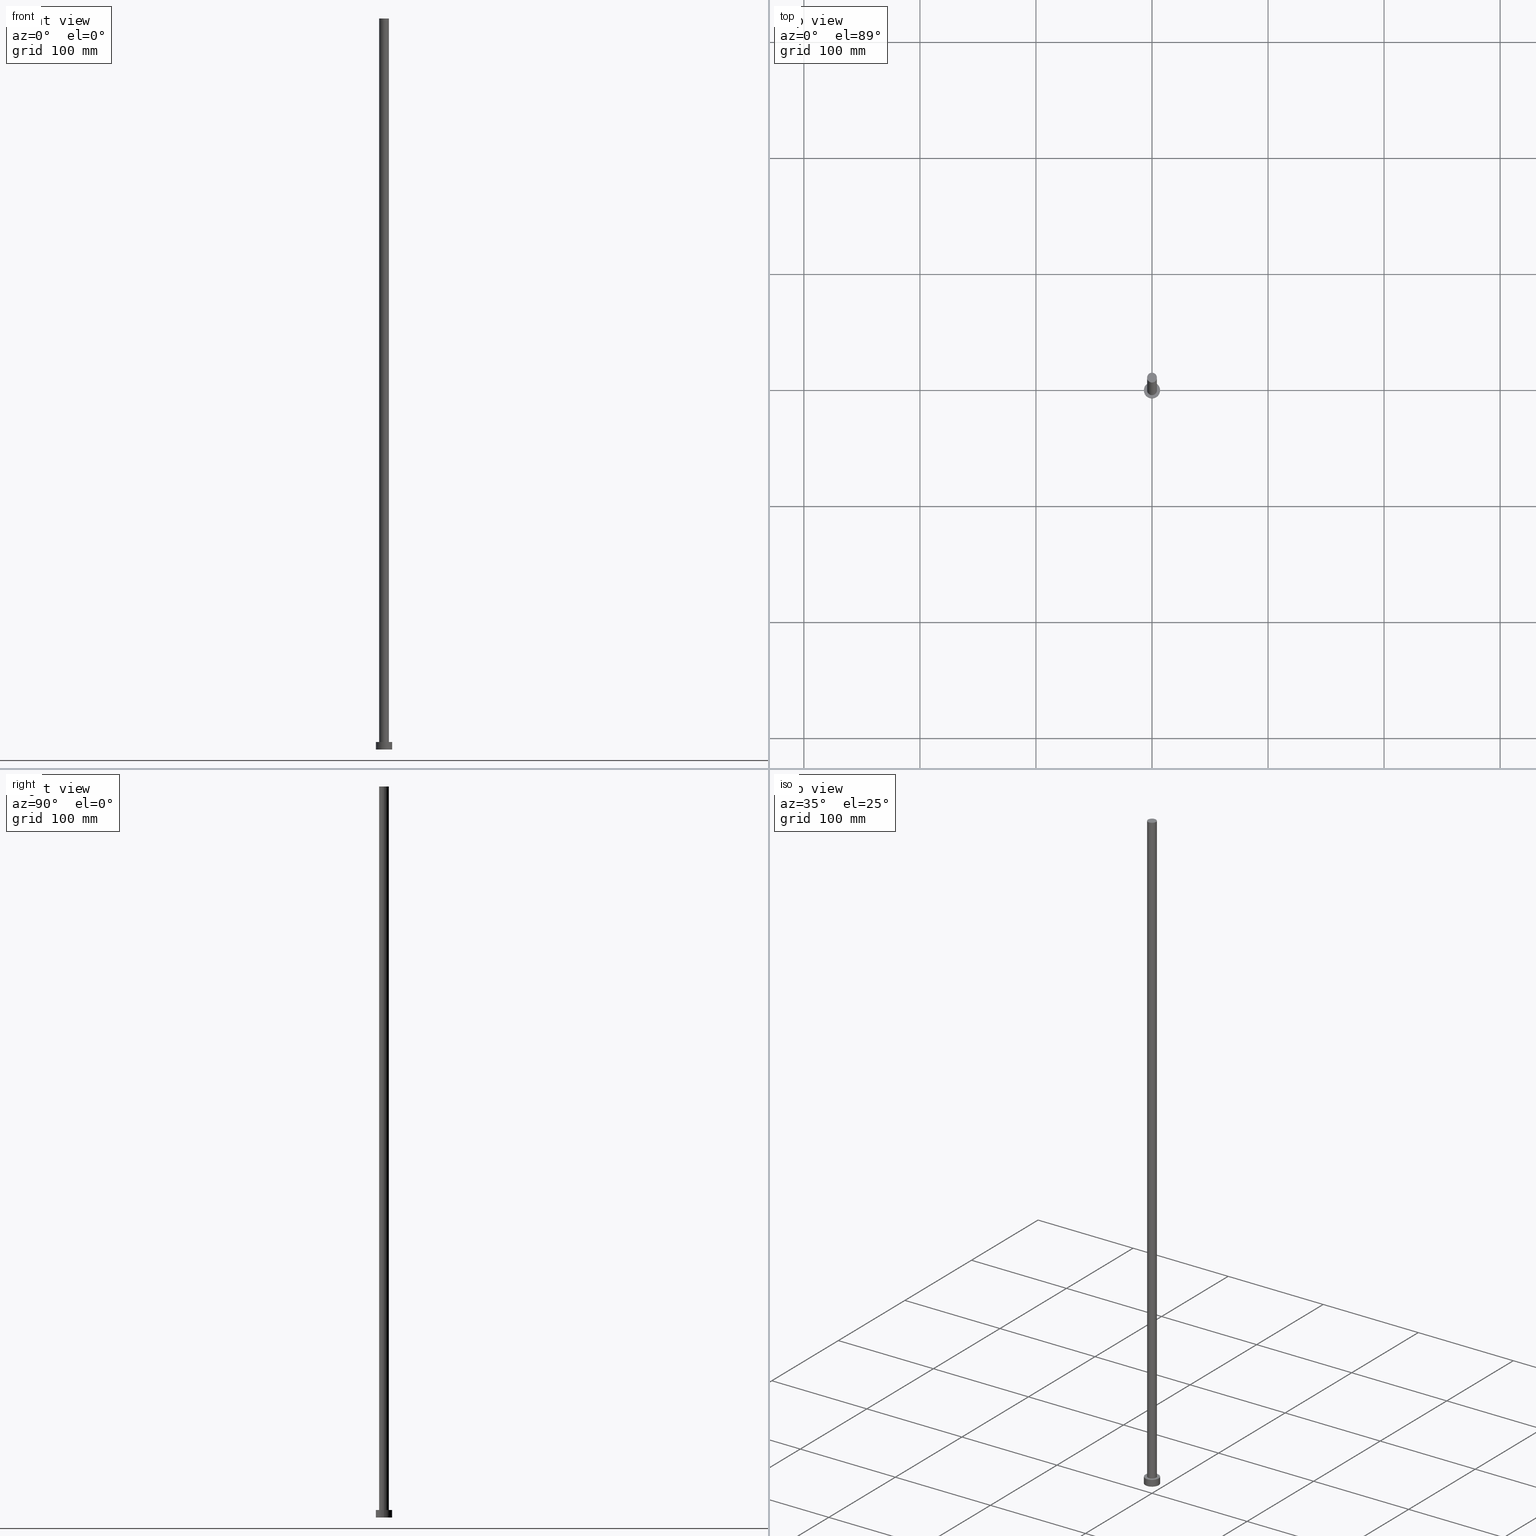
[diagram: canonical four-view strip — front | top / right | iso, engineering-drawing reading convention]
A machine part, canonical four-view strip (front | top / right | iso — engineering-drawing reading convention). The complete STEP part file that produces these views, byte-faithful:
ISO-10303-21;
HEADER;
FILE_DESCRIPTION (( 'STEP AP203' ),
    '1' );
FILE_NAME ('d40b.STEP',
    '2023-02-13T13:47:25',
    ( '' ),
    ( '' ),
    'SwSTEP 2.0',
    'SolidWorks 2019',
    '' );
FILE_SCHEMA (( 'CONFIG_CONTROL_DESIGN' ));
ENDSEC;

DATA;
#1 = CIRCLE ( 'NONE', #246, 7.000000000000000000 ) ;
#2 = COORDINATED_UNIVERSAL_TIME_OFFSET ( 1, 0, .AHEAD. ) ;
#3 = PERSON_AND_ORGANIZATION ( #157, #99 ) ;
#4 = DIRECTION ( 'NONE',  ( 0.000000000000000000, 0.000000000000000000, 1.000000000000000000 ) ) ;
#5 = APPROVAL_DATE_TIME ( #160, #113 ) ;
#6 = CARTESIAN_POINT ( 'NONE',  ( 7.000000000000000000, 8.572527594031471218E-16, 6.500000000000000000 ) ) ;
#7 = APPLICATION_PROTOCOL_DEFINITION ( 'international standard', 'config_control_design', 1994, #126 ) ;
#8 = EDGE_LOOP ( 'NONE', ( #168, #199, #206, #209 ) ) ;
#9 = DIRECTION ( 'NONE',  ( 0.000000000000000000, 0.000000000000000000, 1.000000000000000000 ) ) ;
#10 = ORIENTED_EDGE ( 'NONE', *, *, #213, .T. ) ;
#11 = AXIS2_PLACEMENT_3D ( 'NONE', #95, #79, #233 ) ;
#12 = DIRECTION ( 'NONE',  ( 1.000000000000000000, 0.000000000000000000, -0.000000000000000000 ) ) ;
#13 = DIRECTION ( 'NONE',  ( 0.000000000000000000, 0.000000000000000000, 1.000000000000000000 ) ) ;
#14 = CARTESIAN_POINT ( 'NONE',  ( 4.250000000000000000, 5.204748896376249713E-16, 630.0000000000000000 ) ) ;
#15 = DIRECTION ( 'NONE',  ( 1.000000000000000000, 0.000000000000000000, 0.000000000000000000 ) ) ;
#16 = VERTEX_POINT ( 'NONE', #183 ) ;
#17 = SHAPE_DEFINITION_REPRESENTATION ( #140, #215 ) ;
#18 = CC_DESIGN_APPROVAL ( #52, ( #234 ) ) ;
#19 = CIRCLE ( 'NONE', #167, 4.250000000000000000 ) ;
#20 = LOCAL_TIME ( 14, 47, 25.00000000000000000, #139 ) ;
#21 = ORIENTED_EDGE ( 'NONE', *, *, #229, .F. ) ;
#22 = DATE_AND_TIME ( #219, #218 ) ;
#23 = DIRECTION ( 'NONE',  ( -0.000000000000000000, -0.000000000000000000, -1.000000000000000000 ) ) ;
#24 = EDGE_CURVE ( 'NONE', #241, #247, #63, .T. ) ;
#25 = DIRECTION ( 'NONE',  ( -1.000000000000000000, 0.000000000000000000, 0.000000000000000000 ) ) ;
#26 = APPROVAL ( #75, 'NEUR�EN�' ) ;
#27 = CARTESIAN_POINT ( 'NONE',  ( 0.000000000000000000, 0.000000000000000000, 6.500000000000000000 ) ) ;
#28 = DIRECTION ( 'NONE',  ( -1.000000000000000000, 0.000000000000000000, 0.000000000000000000 ) ) ;
#29 = DIRECTION ( 'NONE',  ( -0.000000000000000000, -0.000000000000000000, -1.000000000000000000 ) ) ;
#30 = AXIS2_PLACEMENT_3D ( 'NONE', #136, #135, #12 ) ;
#31 = CARTESIAN_POINT ( 'NONE',  ( -4.250000000000000000, 0.000000000000000000, 630.0000000000000000 ) ) ;
#32 =( LENGTH_UNIT ( ) NAMED_UNIT ( * ) SI_UNIT ( .MILLI., .METRE. ) );
#33 = DIRECTION ( 'NONE',  ( 1.000000000000000000, 0.000000000000000000, -0.000000000000000000 ) ) ;
#34 = CARTESIAN_POINT ( 'NONE',  ( 0.000000000000000000, 0.000000000000000000, 630.0000000000000000 ) ) ;
#35 = CALENDAR_DATE ( 2023, 13, 2 ) ;
#36 = CALENDAR_DATE ( 2023, 13, 2 ) ;
#37 = PERSON_AND_ORGANIZATION ( #157, #99 ) ;
#38 = CYLINDRICAL_SURFACE ( 'NONE', #119, 4.250000000000000000 ) ;
#39 = EDGE_CURVE ( 'NONE', #247, #186, #104, .T. ) ;
#40 = APPROVAL_ROLE ( '' ) ;
#41 = ORIENTED_EDGE ( 'NONE', *, *, #196, .F. ) ;
#42 = DIRECTION ( 'NONE',  ( -0.000000000000000000, -0.000000000000000000, -1.000000000000000000 ) ) ;
#43 = AXIS2_PLACEMENT_3D ( 'NONE', #191, #137, #15 ) ;
#44 = CIRCLE ( 'NONE', #200, 4.250000000000000000 ) ;
#45 = DIRECTION ( 'NONE',  ( -0.000000000000000000, -0.000000000000000000, -1.000000000000000000 ) ) ;
#46 = CARTESIAN_POINT ( 'NONE',  ( 0.000000000000000000, 0.000000000000000000, 630.0000000000000000 ) ) ;
#47 = DIRECTION ( 'NONE',  ( 0.000000000000000000, 0.000000000000000000, 1.000000000000000000 ) ) ;
#48 = DIRECTION ( 'NONE',  ( 0.000000000000000000, 0.000000000000000000, 1.000000000000000000 ) ) ;
#49 = EDGE_CURVE ( 'NONE', #241, #16, #82, .T. ) ;
#50 = ORIENTED_EDGE ( 'NONE', *, *, #93, .F. ) ;
#51 = UNCERTAINTY_MEASURE_WITH_UNIT (LENGTH_MEASURE( 1.000000000000000082E-05 ), #32, 'distance_accuracy_value', 'NONE');
#52 = APPROVAL ( #60, 'NEUR�EN�' ) ;
#53 = CARTESIAN_POINT ( 'NONE',  ( 7.000000000000000000, 8.572527594031471218E-16, 0.000000000000000000 ) ) ;
#54 = DIRECTION ( 'NONE',  ( 0.000000000000000000, 0.000000000000000000, 1.000000000000000000 ) ) ;
#55 = PERSON_AND_ORGANIZATION_ROLE ( 'creator' ) ;
#56 = PRODUCT_DEFINITION ( 'NEZN�M�', '', #244, #174 ) ;
#57 = DATE_TIME_ROLE ( 'classification_date' ) ;
#58 = CC_DESIGN_APPROVAL ( #113, ( #244 ) ) ;
#59 = VECTOR ( 'NONE', #127, 1000.000000000000000 ) ;
#60 = APPROVAL_STATUS ( 'not_yet_approved' ) ;
#61 = ORIENTED_EDGE ( 'NONE', *, *, #107, .T. ) ;
#62 = ADVANCED_FACE ( 'NONE', ( #66 ), #70, .T. ) ;
#63 = CIRCLE ( 'NONE', #155, 7.000000000000000000 ) ;
#64 = CC_DESIGN_PERSON_AND_ORGANIZATION_ASSIGNMENT ( #203, #78, ( #244 ) ) ;
#65 = PERSON_AND_ORGANIZATION ( #157, #99 ) ;
#66 = FACE_OUTER_BOUND ( 'NONE', #129, .T. ) ;
#67 = CYLINDRICAL_SURFACE ( 'NONE', #245, 7.000000000000000000 ) ;
#68 = DIRECTION ( 'NONE',  ( 0.000000000000000000, 0.000000000000000000, 1.000000000000000000 ) ) ;
#69 = LOCAL_TIME ( 14, 47, 25.00000000000000000, #197 ) ;
#70 = CYLINDRICAL_SURFACE ( 'NONE', #100, 7.000000000000000000 ) ;
#71 = DIRECTION ( 'NONE',  ( -0.000000000000000000, -0.000000000000000000, -1.000000000000000000 ) ) ;
#72 = FACE_BOUND ( 'NONE', #170, .T. ) ;
#73 = FACE_OUTER_BOUND ( 'NONE', #210, .T. ) ;
#74 = VECTOR ( 'NONE', #84, 1000.000000000000000 ) ;
#75 = APPROVAL_STATUS ( 'not_yet_approved' ) ;
#76 = ADVANCED_FACE ( 'NONE', ( #152 ), #67, .T. ) ;
#77 = ORIENTED_EDGE ( 'NONE', *, *, #190, .F. ) ;
#78 = PERSON_AND_ORGANIZATION_ROLE ( 'creator' ) ;
#79 = DIRECTION ( 'NONE',  ( 0.000000000000000000, 0.000000000000000000, 1.000000000000000000 ) ) ;
#80 = FACE_OUTER_BOUND ( 'NONE', #189, .T. ) ;
#81 = PERSON_AND_ORGANIZATION ( #157, #99 ) ;
#82 = LINE ( 'NONE', #85, #59 ) ;
#83 = APPROVAL_ROLE ( '' ) ;
#84 = DIRECTION ( 'NONE',  ( -0.000000000000000000, -0.000000000000000000, -1.000000000000000000 ) ) ;
#85 = CARTESIAN_POINT ( 'NONE',  ( -7.000000000000000000, 0.000000000000000000, 6.500000000000000000 ) ) ;
#86 = ORIENTED_EDGE ( 'NONE', *, *, #24, .T. ) ;
#87 = VECTOR ( 'NONE', #71, 1000.000000000000000 ) ;
#88 = CARTESIAN_POINT ( 'NONE',  ( 0.000000000000000000, 0.000000000000000000, 0.000000000000000000 ) ) ;
#89 = CC_DESIGN_DATE_AND_TIME_ASSIGNMENT ( #166, #57, ( #234 ) ) ;
#90 = DIRECTION ( 'NONE',  ( 0.000000000000000000, 0.000000000000000000, 1.000000000000000000 ) ) ;
#91 = CLOSED_SHELL ( 'NONE', ( #161, #62, #76, #169, #202, #112, #141 ) ) ;
#92 = DIRECTION ( 'NONE',  ( 1.000000000000000000, 0.000000000000000000, -0.000000000000000000 ) ) ;
#93 = EDGE_CURVE ( 'NONE', #223, #149, #44, .T. ) ;
#94 = LINE ( 'NONE', #156, #225 ) ;
#95 = CARTESIAN_POINT ( 'NONE',  ( 0.000000000000000000, 0.000000000000000000, 0.000000000000000000 ) ) ;
#96 = LOCAL_TIME ( 14, 47, 25.00000000000000000, #2 ) ;
#97 = MECHANICAL_CONTEXT ( 'NONE', #111, 'mechanical' ) ;
#98 = VERTEX_POINT ( 'NONE', #222 ) ;
#99 = ORGANIZATION ( 'NEUR�EN�', 'NEUR�EN�', '' ) ;
#100 = AXIS2_PLACEMENT_3D ( 'NONE', #145, #45, #243 ) ;
#101 = AXIS2_PLACEMENT_3D ( 'NONE', #46, #13, #134 ) ;
#102 = APPROVAL_STATUS ( 'not_yet_approved' ) ;
#103 = ORIENTED_EDGE ( 'NONE', *, *, #93, .T. ) ;
#104 = LINE ( 'NONE', #6, #74 ) ;
#105 = LINE ( 'NONE', #31, #87 ) ;
#106 = EDGE_LOOP ( 'NONE', ( #227, #228, #131, #238 ) ) ;
#107 = EDGE_CURVE ( 'NONE', #247, #241, #226, .T. ) ;
#108 = ORIENTED_EDGE ( 'NONE', *, *, #229, .T. ) ;
#109 = ORIENTED_EDGE ( 'NONE', *, *, #130, .T. ) ;
#110 = DIRECTION ( 'NONE',  ( 0.000000000000000000, 0.000000000000000000, 1.000000000000000000 ) ) ;
#111 = APPLICATION_CONTEXT ( 'configuration controlled 3d designs of mechanical parts and assemblies' ) ;
#112 = ADVANCED_FACE ( 'NONE', ( #80 ), #38, .T. ) ;
#113 = APPROVAL ( #102, 'NEUR�EN�' ) ;
#114 = CARTESIAN_POINT ( 'NONE',  ( 0.000000000000000000, 0.000000000000000000, 6.500000000000000000 ) ) ;
#115 = DIRECTION ( 'NONE',  ( 1.000000000000000000, 0.000000000000000000, 0.000000000000000000 ) ) ;
#116 =( NAMED_UNIT ( * ) PLANE_ANGLE_UNIT ( ) SI_UNIT ( $, .RADIAN. ) );
#117 = CC_DESIGN_APPROVAL ( #26, ( #56 ) ) ;
#118 = AXIS2_PLACEMENT_3D ( 'NONE', #88, #110, #33 ) ;
#119 = AXIS2_PLACEMENT_3D ( 'NONE', #147, #23, #25 ) ;
#120 = PLANE ( 'NONE',  #132 ) ;
#121 = DATE_AND_TIME ( #36, #143 ) ;
#122 = PERSON_AND_ORGANIZATION ( #157, #99 ) ;
#123 =( GEOMETRIC_REPRESENTATION_CONTEXT ( 3 ) GLOBAL_UNCERTAINTY_ASSIGNED_CONTEXT ( ( #51 ) ) GLOBAL_UNIT_ASSIGNED_CONTEXT ( ( #32, #116, #232 ) ) REPRESENTATION_CONTEXT ( 'NONE', 'WORKASPACE' ) );
#124 = EDGE_LOOP ( 'NONE', ( #77, #201 ) ) ;
#125 = DATE_TIME_ROLE ( 'creation_date' ) ;
#126 = APPLICATION_CONTEXT ( 'configuration controlled 3d designs of mechanical parts and assemblies' ) ;
#127 = DIRECTION ( 'NONE',  ( -0.000000000000000000, -0.000000000000000000, -1.000000000000000000 ) ) ;
#128 = CALENDAR_DATE ( 2023, 13, 2 ) ;
#129 = EDGE_LOOP ( 'NONE', ( #192, #165, #10, #172 ) ) ;
#130 = EDGE_CURVE ( 'NONE', #98, #223, #105, .T. ) ;
#131 = ORIENTED_EDGE ( 'NONE', *, *, #49, .T. ) ;
#132 = AXIS2_PLACEMENT_3D ( 'NONE', #194, #48, #92 ) ;
#133 = CARTESIAN_POINT ( 'NONE',  ( 0.000000000000000000, 0.000000000000000000, 6.500000000000000000 ) ) ;
#134 = DIRECTION ( 'NONE',  ( 1.000000000000000000, 0.000000000000000000, 0.000000000000000000 ) ) ;
#135 = DIRECTION ( 'NONE',  ( 0.000000000000000000, 0.000000000000000000, 1.000000000000000000 ) ) ;
#136 = CARTESIAN_POINT ( 'NONE',  ( 0.000000000000000000, 0.000000000000000000, 630.0000000000000000 ) ) ;
#137 = DIRECTION ( 'NONE',  ( 0.000000000000000000, 0.000000000000000000, 1.000000000000000000 ) ) ;
#138 = APPROVAL_PERSON_ORGANIZATION ( #65, #52, #40 ) ;
#139 = COORDINATED_UNIVERSAL_TIME_OFFSET ( 1, 0, .AHEAD. ) ;
#140 = PRODUCT_DEFINITION_SHAPE ( 'NONE', 'NONE',  #56 ) ;
#141 = ADVANCED_FACE ( 'NONE', ( #73 ), #153, .T. ) ;
#142 = CC_DESIGN_PERSON_AND_ORGANIZATION_ASSIGNMENT ( #122, #180, ( #234 ) ) ;
#143 = LOCAL_TIME ( 14, 47, 25.00000000000000000, #240 ) ;
#144 = APPROVAL_DATE_TIME ( #22, #26 ) ;
#145 = CARTESIAN_POINT ( 'NONE',  ( 0.000000000000000000, 0.000000000000000000, 6.500000000000000000 ) ) ;
#146 = COORDINATED_UNIVERSAL_TIME_OFFSET ( 1, 0, .AHEAD. ) ;
#147 = CARTESIAN_POINT ( 'NONE',  ( 0.000000000000000000, 0.000000000000000000, 630.0000000000000000 ) ) ;
#148 = EDGE_CURVE ( 'NONE', #149, #223, #19, .T. ) ;
#149 = VERTEX_POINT ( 'NONE', #217 ) ;
#150 = DIRECTION ( 'NONE',  ( 1.000000000000000000, 0.000000000000000000, 0.000000000000000000 ) ) ;
#151 = CIRCLE ( 'NONE', #101, 4.250000000000000000 ) ;
#152 = FACE_OUTER_BOUND ( 'NONE', #106, .T. ) ;
#153 = PLANE ( 'NONE',  #30 ) ;
#154 = DIRECTION ( 'NONE',  ( 1.000000000000000000, 0.000000000000000000, 0.000000000000000000 ) ) ;
#155 = AXIS2_PLACEMENT_3D ( 'NONE', #27, #9, #188 ) ;
#156 = CARTESIAN_POINT ( 'NONE',  ( 4.250000000000000000, 5.204748896376249713E-16, 630.0000000000000000 ) ) ;
#157 = PERSON ( 'NEUR�EN�', 'NEUR�EN�', 'NEUR�EN�', ('NEUR�EN�'), ('NEUR�EN�'), ('NEUR�EN�') ) ;
#158 = APPLICATION_PROTOCOL_DEFINITION ( 'international standard', 'config_control_design', 1994, #111 ) ;
#159 = DIRECTION ( 'NONE',  ( 1.000000000000000000, 0.000000000000000000, 0.000000000000000000 ) ) ;
#160 = DATE_AND_TIME ( #35, #96 ) ;
#161 = ADVANCED_FACE ( 'NONE', ( #249 ), #248, .T. ) ;
#162 = APPROVAL_PERSON_ORGANIZATION ( #179, #113, #83 ) ;
#163 = CIRCLE ( 'NONE', #43, 7.000000000000000000 ) ;
#164 = PERSON_AND_ORGANIZATION ( #157, #99 ) ;
#165 = ORIENTED_EDGE ( 'NONE', *, *, #39, .T. ) ;
#166 = DATE_AND_TIME ( #220, #69 ) ;
#167 = AXIS2_PLACEMENT_3D ( 'NONE', #114, #54, #115 ) ;
#168 = ORIENTED_EDGE ( 'NONE', *, *, #236, .F. ) ;
#169 = ADVANCED_FACE ( 'NONE', ( #72, #230 ), #120, .T. ) ;
#170 = EDGE_LOOP ( 'NONE', ( #50, #193 ) ) ;
#171 = VERTEX_POINT ( 'NONE', #14 ) ;
#172 = ORIENTED_EDGE ( 'NONE', *, *, #49, .F. ) ;
#173 = CARTESIAN_POINT ( 'NONE',  ( -7.000000000000000000, 0.000000000000000000, 6.500000000000000000 ) ) ;
#174 = DESIGN_CONTEXT ( 'detailed design', #126, 'design' ) ;
#175 = CARTESIAN_POINT ( 'NONE',  ( 0.000000000000000000, 0.000000000000000000, 630.0000000000000000 ) ) ;
#176 = DIRECTION ( 'NONE',  ( -0.000000000000000000, -0.000000000000000000, -1.000000000000000000 ) ) ;
#177 = APPROVAL_ROLE ( '' ) ;
#178 = CC_DESIGN_PERSON_AND_ORGANIZATION_ASSIGNMENT ( #81, #55, ( #56 ) ) ;
#179 = PERSON_AND_ORGANIZATION ( #157, #99 ) ;
#180 = PERSON_AND_ORGANIZATION_ROLE ( 'classification_officer' ) ;
#181 = CARTESIAN_POINT ( 'NONE',  ( 0.000000000000000000, 0.000000000000000000, 6.500000000000000000 ) ) ;
#182 = SECURITY_CLASSIFICATION_LEVEL ( 'unclassified' ) ;
#183 = CARTESIAN_POINT ( 'NONE',  ( -7.000000000000000000, 0.000000000000000000, 0.000000000000000000 ) ) ;
#184 = CC_DESIGN_PERSON_AND_ORGANIZATION_ASSIGNMENT ( #164, #252, ( #244 ) ) ;
#185 = APPROVAL_PERSON_ORGANIZATION ( #3, #26, #177 ) ;
#186 = VERTEX_POINT ( 'NONE', #53 ) ;
#187 = PRODUCT ( 'd40b', 'd40b', '', ( #97 ) ) ;
#188 = DIRECTION ( 'NONE',  ( 1.000000000000000000, 0.000000000000000000, 0.000000000000000000 ) ) ;
#189 = EDGE_LOOP ( 'NONE', ( #41, #21, #109, #103 ) ) ;
#190 = EDGE_CURVE ( 'NONE', #16, #186, #163, .T. ) ;
#191 = CARTESIAN_POINT ( 'NONE',  ( 0.000000000000000000, 0.000000000000000000, 0.000000000000000000 ) ) ;
#192 = ORIENTED_EDGE ( 'NONE', *, *, #107, .F. ) ;
#193 = ORIENTED_EDGE ( 'NONE', *, *, #148, .F. ) ;
#194 = CARTESIAN_POINT ( 'NONE',  ( 0.000000000000000000, 0.000000000000000000, 6.500000000000000000 ) ) ;
#195 = EDGE_LOOP ( 'NONE', ( #86, #61 ) ) ;
#196 = EDGE_CURVE ( 'NONE', #171, #149, #94, .T. ) ;
#197 = COORDINATED_UNIVERSAL_TIME_OFFSET ( 1, 0, .AHEAD. ) ;
#198 = DATE_AND_TIME ( #128, #20 ) ;
#199 = ORIENTED_EDGE ( 'NONE', *, *, #196, .T. ) ;
#200 = AXIS2_PLACEMENT_3D ( 'NONE', #221, #68, #205 ) ;
#201 = ORIENTED_EDGE ( 'NONE', *, *, #213, .F. ) ;
#202 = ADVANCED_FACE ( 'NONE', ( #251 ), #231, .F. ) ;
#203 = PERSON_AND_ORGANIZATION ( #157, #99 ) ;
#204 = CC_DESIGN_DATE_AND_TIME_ASSIGNMENT ( #121, #125, ( #56 ) ) ;
#205 = DIRECTION ( 'NONE',  ( 1.000000000000000000, 0.000000000000000000, 0.000000000000000000 ) ) ;
#206 = ORIENTED_EDGE ( 'NONE', *, *, #148, .T. ) ;
#207 = CC_DESIGN_SECURITY_CLASSIFICATION ( #234, ( #244 ) ) ;
#208 = AXIS2_PLACEMENT_3D ( 'NONE', #34, #29, #216 ) ;
#209 = ORIENTED_EDGE ( 'NONE', *, *, #130, .F. ) ;
#210 = EDGE_LOOP ( 'NONE', ( #108, #242 ) ) ;
#211 = CARTESIAN_POINT ( 'NONE',  ( -4.250000000000000000, 0.000000000000000000, 6.500000000000000000 ) ) ;
#212 = CARTESIAN_POINT ( 'NONE',  ( 7.000000000000000000, 8.572527594031471218E-16, 6.500000000000000000 ) ) ;
#213 = EDGE_CURVE ( 'NONE', #186, #16, #1, .T. ) ;
#214 = CC_DESIGN_PERSON_AND_ORGANIZATION_ASSIGNMENT ( #37, #235, ( #187 ) ) ;
#215 = ADVANCED_BREP_SHAPE_REPRESENTATION ( 'd40b', ( #255, #11 ), #123 ) ;
#216 = DIRECTION ( 'NONE',  ( -1.000000000000000000, 0.000000000000000000, 0.000000000000000000 ) ) ;
#217 = CARTESIAN_POINT ( 'NONE',  ( 4.250000000000000000, 5.204748896376249713E-16, 6.500000000000000000 ) ) ;
#218 = LOCAL_TIME ( 14, 47, 25.00000000000000000, #146 ) ;
#219 = CALENDAR_DATE ( 2023, 13, 2 ) ;
#220 = CALENDAR_DATE ( 2023, 13, 2 ) ;
#221 = CARTESIAN_POINT ( 'NONE',  ( 0.000000000000000000, 0.000000000000000000, 6.500000000000000000 ) ) ;
#222 = CARTESIAN_POINT ( 'NONE',  ( -4.250000000000000000, 0.000000000000000000, 630.0000000000000000 ) ) ;
#223 = VERTEX_POINT ( 'NONE', #211 ) ;
#224 = AXIS2_PLACEMENT_3D ( 'NONE', #175, #90, #154 ) ;
#225 = VECTOR ( 'NONE', #176, 1000.000000000000000 ) ;
#226 = CIRCLE ( 'NONE', #253, 7.000000000000000000 ) ;
#227 = ORIENTED_EDGE ( 'NONE', *, *, #39, .F. ) ;
#228 = ORIENTED_EDGE ( 'NONE', *, *, #24, .F. ) ;
#229 = EDGE_CURVE ( 'NONE', #98, #171, #151, .T. ) ;
#230 = FACE_OUTER_BOUND ( 'NONE', #195, .T. ) ;
#231 = PLANE ( 'NONE',  #118 ) ;
#232 =( NAMED_UNIT ( * ) SI_UNIT ( $, .STERADIAN. ) SOLID_ANGLE_UNIT ( ) );
#233 = DIRECTION ( 'NONE',  ( 1.000000000000000000, 0.000000000000000000, 0.000000000000000000 ) ) ;
#234 = SECURITY_CLASSIFICATION ( '', '', #182 ) ;
#235 = PERSON_AND_ORGANIZATION_ROLE ( 'design_owner' ) ;
#236 = EDGE_CURVE ( 'NONE', #171, #98, #239, .T. ) ;
#237 = APPROVAL_DATE_TIME ( #198, #52 ) ;
#238 = ORIENTED_EDGE ( 'NONE', *, *, #190, .T. ) ;
#239 = CIRCLE ( 'NONE', #224, 4.250000000000000000 ) ;
#240 = COORDINATED_UNIVERSAL_TIME_OFFSET ( 1, 0, .AHEAD. ) ;
#241 = VERTEX_POINT ( 'NONE', #173 ) ;
#242 = ORIENTED_EDGE ( 'NONE', *, *, #236, .T. ) ;
#243 = DIRECTION ( 'NONE',  ( -1.000000000000000000, 0.000000000000000000, 0.000000000000000000 ) ) ;
#244 = PRODUCT_DEFINITION_FORMATION_WITH_SPECIFIED_SOURCE ( 'LIBOVOLN�', '', #187, .NOT_KNOWN. ) ;
#245 = AXIS2_PLACEMENT_3D ( 'NONE', #181, #42, #28 ) ;
#246 = AXIS2_PLACEMENT_3D ( 'NONE', #250, #47, #159 ) ;
#247 = VERTEX_POINT ( 'NONE', #212 ) ;
#248 = CYLINDRICAL_SURFACE ( 'NONE', #208, 4.250000000000000000 ) ;
#249 = FACE_OUTER_BOUND ( 'NONE', #8, .T. ) ;
#250 = CARTESIAN_POINT ( 'NONE',  ( 0.000000000000000000, 0.000000000000000000, 0.000000000000000000 ) ) ;
#251 = FACE_OUTER_BOUND ( 'NONE', #124, .T. ) ;
#252 = PERSON_AND_ORGANIZATION_ROLE ( 'design_supplier' ) ;
#253 = AXIS2_PLACEMENT_3D ( 'NONE', #133, #4, #150 ) ;
#254 = PRODUCT_RELATED_PRODUCT_CATEGORY ( 'detail', '', ( #187 ) ) ;
#255 = MANIFOLD_SOLID_BREP ( 'P�idat vysunut�m3', #91 ) ;
ENDSEC;
END-ISO-10303-21;
